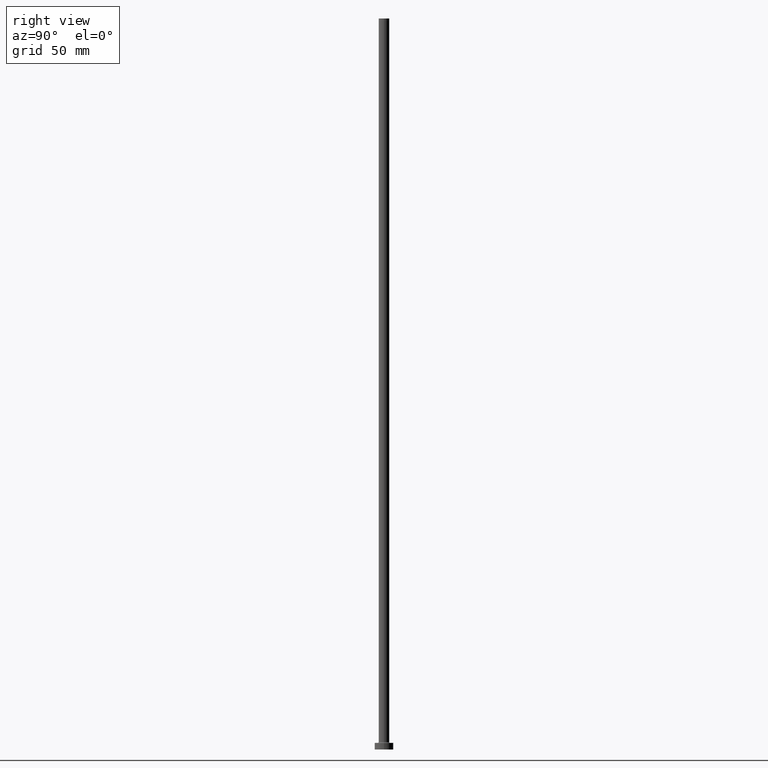
[diagram: clean part render]
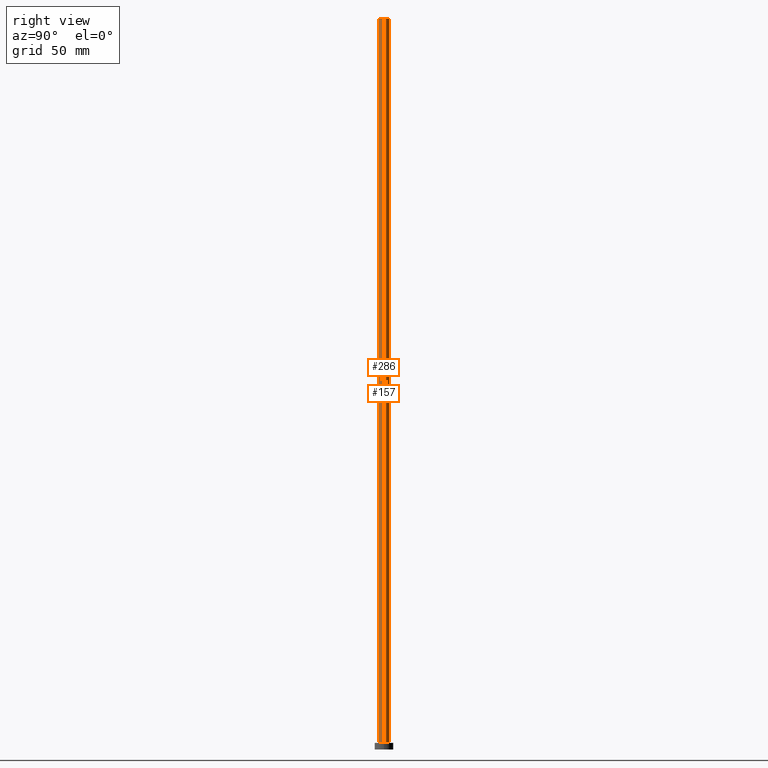
[diagram: same view with one multi-face feature highlighted, each face labeled with its STEP entity id]
A machine part, right view. The highlighted faces form ONE feature: a constant-radius fillet chain: 2 tangent blend faces with common blend radius 4 mm. The faces share edges in the B-rep.
Their STEP definitions:
[1] entity #157 (Cylinder):
#6 = CARTESIAN_POINT ( 'NONE',  ( 4.000000000000000000, 4.898587196589412829E-16, 550.0000000000000000 ) ) ;
#35 = CARTESIAN_POINT ( 'NONE',  ( -4.000000000000000000, 0.000000000000000000, 5.499999999999949374 ) ) ;
#40 = LINE ( 'NONE', #6, #418 ) ;
#45 = VERTEX_POINT ( 'NONE', #347 ) ;
#72 = CARTESIAN_POINT ( 'NONE',  ( 4.000000000000000000, 4.898587196589412829E-16, 550.0000000000000000 ) ) ;
#78 = EDGE_CURVE ( 'NONE', #340, #98, #319, .T. ) ;
#81 = VERTEX_POINT ( 'NONE', #72 ) ;
#98 = VERTEX_POINT ( 'NONE', #35 ) ;
#101 = DIRECTION ( 'NONE',  ( -0.000000000000000000, -0.000000000000000000, -1.000000000000000000 ) ) ;
#103 = AXIS2_PLACEMENT_3D ( 'NONE', #336, #291, #226 ) ;
#105 = CYLINDRICAL_SURFACE ( 'NONE', #323, 4.000000000000000000 ) ;
#106 = EDGE_CURVE ( 'NONE', #81, #45, #40, .T. ) ;
#114 = CIRCLE ( 'NONE', #103, 4.000000000000000000 ) ;
#157 = ADVANCED_FACE ( 'NONE', ( #353 ), #105, .T. ) ;
#179 = DIRECTION ( 'NONE',  ( 0.000000000000000000, 0.000000000000000000, 1.000000000000000000 ) ) ;
#204 = CARTESIAN_POINT ( 'NONE',  ( -4.000000000000000000, 0.000000000000000000, 550.0000000000000000 ) ) ;
#206 = CIRCLE ( 'NONE', #370, 4.000000000000000000 ) ;
#209 = EDGE_CURVE ( 'NONE', #45, #98, #206, .T. ) ;
#224 = ORIENTED_EDGE ( 'NONE', *, *, #106, .T. ) ;
#226 = DIRECTION ( 'NONE',  ( 1.000000000000000000, 0.000000000000000000, 0.000000000000000000 ) ) ;
#238 = VECTOR ( 'NONE', #101, 1000.000000000000000 ) ;
#250 = DIRECTION ( 'NONE',  ( -0.000000000000000000, -0.000000000000000000, -1.000000000000000000 ) ) ;
#291 = DIRECTION ( 'NONE',  ( 0.000000000000000000, 0.000000000000000000, 1.000000000000000000 ) ) ;
#306 = EDGE_CURVE ( 'NONE', #81, #340, #114, .T. ) ;
#319 = LINE ( 'NONE', #204, #238 ) ;
#323 = AXIS2_PLACEMENT_3D ( 'NONE', #349, #250, #423 ) ;
#336 = CARTESIAN_POINT ( 'NONE',  ( 0.000000000000000000, 0.000000000000000000, 550.0000000000000000 ) ) ;
#340 = VERTEX_POINT ( 'NONE', #363 ) ;
#344 = ORIENTED_EDGE ( 'NONE', *, *, #209, .T. ) ;
#347 = CARTESIAN_POINT ( 'NONE',  ( 4.000000000000000000, 4.898587196589412829E-16, 5.499999999999949374 ) ) ;
#349 = CARTESIAN_POINT ( 'NONE',  ( 0.000000000000000000, 0.000000000000000000, 550.0000000000000000 ) ) ;
#353 = FACE_OUTER_BOUND ( 'NONE', #415, .T. ) ;
#360 = DIRECTION ( 'NONE',  ( 1.000000000000000000, 0.000000000000000000, 0.000000000000000000 ) ) ;
#362 = ORIENTED_EDGE ( 'NONE', *, *, #78, .F. ) ;
#363 = CARTESIAN_POINT ( 'NONE',  ( -4.000000000000000000, 0.000000000000000000, 550.0000000000000000 ) ) ;
#364 = ORIENTED_EDGE ( 'NONE', *, *, #306, .F. ) ;
#370 = AXIS2_PLACEMENT_3D ( 'NONE', #436, #179, #360 ) ;
#415 = EDGE_LOOP ( 'NONE', ( #364, #224, #344, #362 ) ) ;
#418 = VECTOR ( 'NONE', #460, 1000.000000000000000 ) ;
#423 = DIRECTION ( 'NONE',  ( -1.000000000000000000, 0.000000000000000000, 0.000000000000000000 ) ) ;
#436 = CARTESIAN_POINT ( 'NONE',  ( 0.000000000000000000, 0.000000000000000000, 5.499999999999949374 ) ) ;
#460 = DIRECTION ( 'NONE',  ( -0.000000000000000000, -0.000000000000000000, -1.000000000000000000 ) ) ;
[2] entity #286 (Cylinder):
#6 = CARTESIAN_POINT ( 'NONE',  ( 4.000000000000000000, 4.898587196589412829E-16, 550.0000000000000000 ) ) ;
#35 = CARTESIAN_POINT ( 'NONE',  ( -4.000000000000000000, 0.000000000000000000, 5.499999999999949374 ) ) ;
#40 = LINE ( 'NONE', #6, #418 ) ;
#45 = VERTEX_POINT ( 'NONE', #347 ) ;
#72 = CARTESIAN_POINT ( 'NONE',  ( 4.000000000000000000, 4.898587196589412829E-16, 550.0000000000000000 ) ) ;
#78 = EDGE_CURVE ( 'NONE', #340, #98, #319, .T. ) ;
#81 = VERTEX_POINT ( 'NONE', #72 ) ;
#83 = DIRECTION ( 'NONE',  ( 1.000000000000000000, 0.000000000000000000, 0.000000000000000000 ) ) ;
#98 = VERTEX_POINT ( 'NONE', #35 ) ;
#101 = DIRECTION ( 'NONE',  ( -0.000000000000000000, -0.000000000000000000, -1.000000000000000000 ) ) ;
#106 = EDGE_CURVE ( 'NONE', #81, #45, #40, .T. ) ;
#111 = DIRECTION ( 'NONE',  ( 0.000000000000000000, 0.000000000000000000, 1.000000000000000000 ) ) ;
#119 = ORIENTED_EDGE ( 'NONE', *, *, #78, .T. ) ;
#124 = CIRCLE ( 'NONE', #231, 4.000000000000000000 ) ;
#129 = EDGE_LOOP ( 'NONE', ( #237, #159, #119, #437 ) ) ;
#143 = FACE_OUTER_BOUND ( 'NONE', #129, .T. ) ;
#159 = ORIENTED_EDGE ( 'NONE', *, *, #421, .F. ) ;
#160 = CIRCLE ( 'NONE', #174, 4.000000000000000000 ) ;
#174 = AXIS2_PLACEMENT_3D ( 'NONE', #382, #376, #273 ) ;
#204 = CARTESIAN_POINT ( 'NONE',  ( -4.000000000000000000, 0.000000000000000000, 550.0000000000000000 ) ) ;
#220 = CARTESIAN_POINT ( 'NONE',  ( 0.000000000000000000, 0.000000000000000000, 5.499999999999949374 ) ) ;
#231 = AXIS2_PLACEMENT_3D ( 'NONE', #220, #111, #83 ) ;
#237 = ORIENTED_EDGE ( 'NONE', *, *, #106, .F. ) ;
#238 = VECTOR ( 'NONE', #101, 1000.000000000000000 ) ;
#261 = CYLINDRICAL_SURFACE ( 'NONE', #324, 4.000000000000000000 ) ;
#273 = DIRECTION ( 'NONE',  ( 1.000000000000000000, 0.000000000000000000, 0.000000000000000000 ) ) ;
#286 = ADVANCED_FACE ( 'NONE', ( #143 ), #261, .T. ) ;
#289 = EDGE_CURVE ( 'NONE', #98, #45, #124, .T. ) ;
#296 = CARTESIAN_POINT ( 'NONE',  ( 0.000000000000000000, 0.000000000000000000, 550.0000000000000000 ) ) ;
#319 = LINE ( 'NONE', #204, #238 ) ;
#324 = AXIS2_PLACEMENT_3D ( 'NONE', #296, #366, #439 ) ;
#340 = VERTEX_POINT ( 'NONE', #363 ) ;
#347 = CARTESIAN_POINT ( 'NONE',  ( 4.000000000000000000, 4.898587196589412829E-16, 5.499999999999949374 ) ) ;
#363 = CARTESIAN_POINT ( 'NONE',  ( -4.000000000000000000, 0.000000000000000000, 550.0000000000000000 ) ) ;
#366 = DIRECTION ( 'NONE',  ( -0.000000000000000000, -0.000000000000000000, -1.000000000000000000 ) ) ;
#376 = DIRECTION ( 'NONE',  ( 0.000000000000000000, 0.000000000000000000, 1.000000000000000000 ) ) ;
#382 = CARTESIAN_POINT ( 'NONE',  ( 0.000000000000000000, 0.000000000000000000, 550.0000000000000000 ) ) ;
#418 = VECTOR ( 'NONE', #460, 1000.000000000000000 ) ;
#421 = EDGE_CURVE ( 'NONE', #340, #81, #160, .T. ) ;
#437 = ORIENTED_EDGE ( 'NONE', *, *, #289, .T. ) ;
#439 = DIRECTION ( 'NONE',  ( -1.000000000000000000, 0.000000000000000000, 0.000000000000000000 ) ) ;
#460 = DIRECTION ( 'NONE',  ( -0.000000000000000000, -0.000000000000000000, -1.000000000000000000 ) ) ;